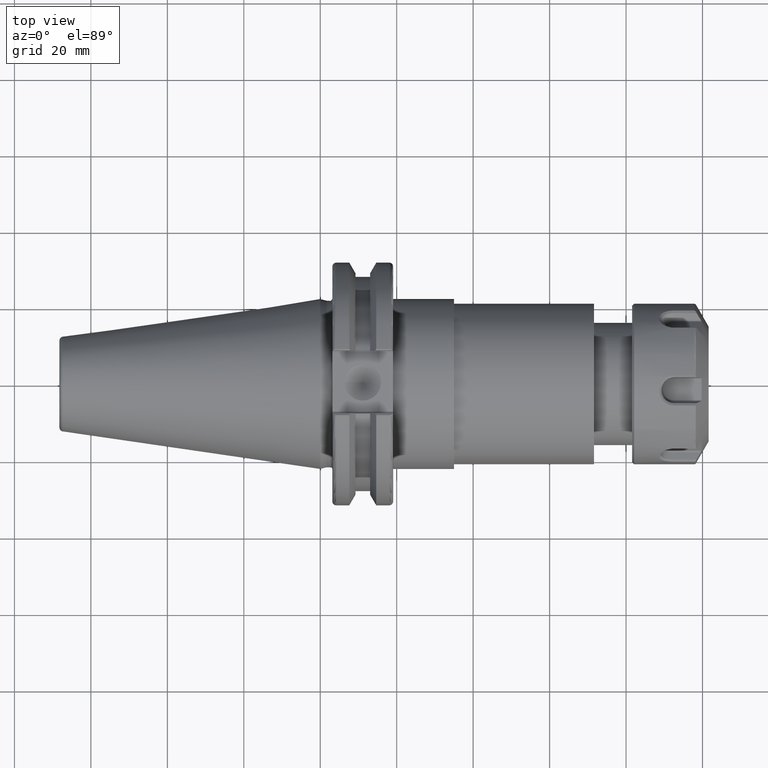
[diagram: clean part render]
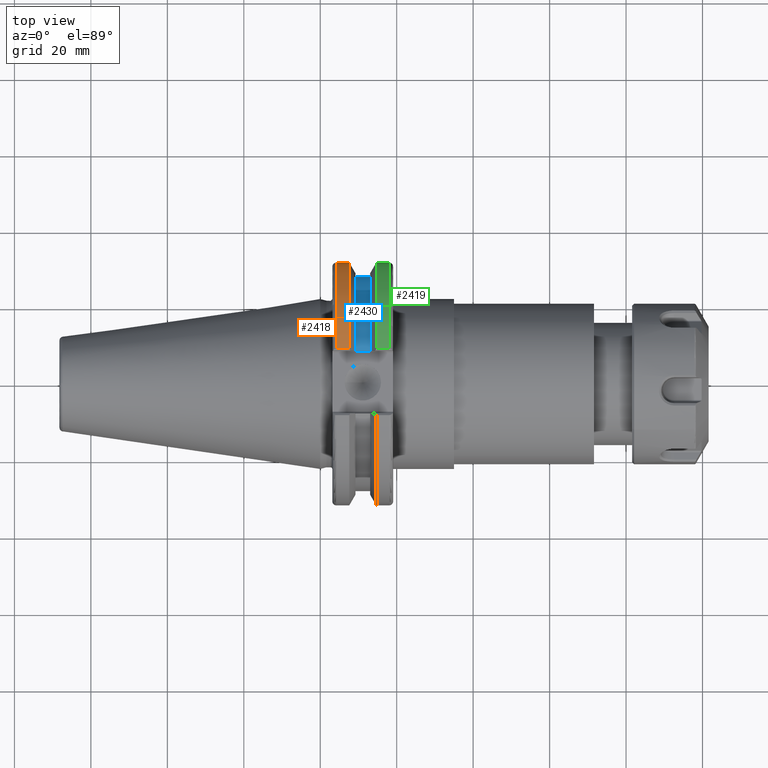
[diagram: same view with three faces highlighted in distinct colors, each labeled with its STEP entity id]
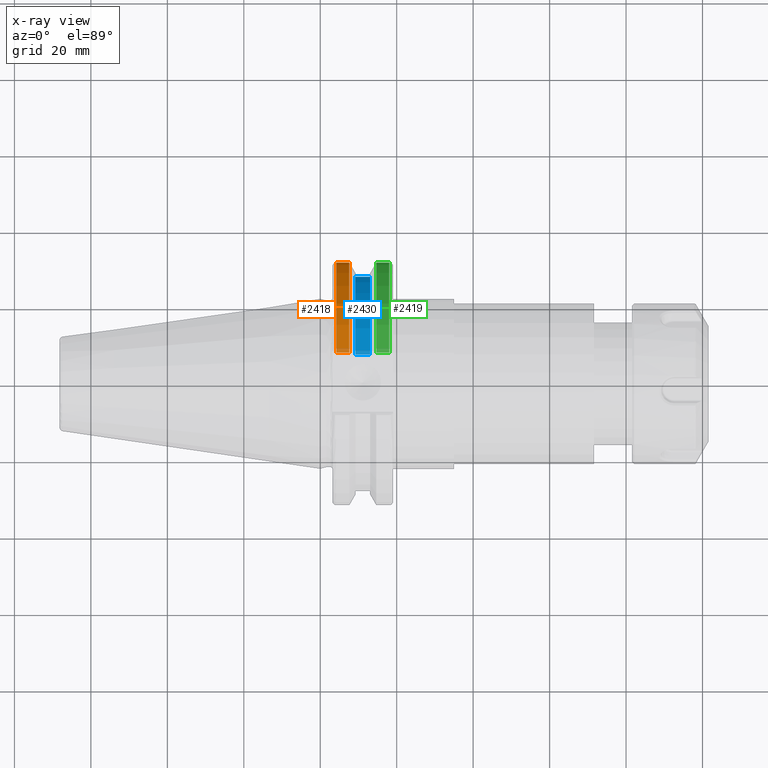
[diagram: x-ray of the same camera — body ghosted, the three highlighted faces saturated]
A machine part, top view with three faces highlighted in distinct colors.
The next image is the same camera in x-ray (body ghosted, the three faces saturated) — at least one of them is partly hidden behind the body in this view.
Their STEP definitions:

[orange] entity #2418 — the highlighted cylindrical surface (partial cylindrical patch) has radius 31.75 mm, axis along (1, 0, 0).
#310=CYLINDRICAL_SURFACE('',#2671,31.75);
#373=FACE_OUTER_BOUND('',#523,.T.);
#523=EDGE_LOOP('',(#1860,#1861,#1862,#1863));
#685=LINE('',#3827,#849);
#699=LINE('',#3886,#863);
#849=VECTOR('',#3008,10.);
#863=VECTOR('',#3060,10.);
#990=CIRCLE('',#2651,31.75);
#998=CIRCLE('',#2672,31.75);
#1145=VERTEX_POINT('',#3800);
#1146=VERTEX_POINT('',#3809);
#1147=VERTEX_POINT('',#3826);
#1161=VERTEX_POINT('',#3885);
#1395=EDGE_CURVE('',#1145,#1146,#990,.T.);
#1398=EDGE_CURVE('',#1146,#1147,#685,.T.);
#1423=EDGE_CURVE('',#1161,#1145,#699,.T.);
#1424=EDGE_CURVE('',#1147,#1161,#998,.T.);
#1860=ORIENTED_EDGE('',*,*,#1395,.F.);
#1861=ORIENTED_EDGE('',*,*,#1423,.F.);
#1862=ORIENTED_EDGE('',*,*,#1424,.F.);
#1863=ORIENTED_EDGE('',*,*,#1398,.F.);
#2418=ADVANCED_FACE('',(#373),#310,.T.);
#2651=AXIS2_PLACEMENT_3D('',#3810,#3004,#3005);
#2671=AXIS2_PLACEMENT_3D('',#3884,#3058,#3059);
#2672=AXIS2_PLACEMENT_3D('',#3887,#3061,#3062);
#3004=DIRECTION('center_axis',(-1.,0.,0.));
#3005=DIRECTION('ref_axis',(0.,1.,1.60812264967664E-16));
#3008=DIRECTION('',(1.,0.,0.));
#3058=DIRECTION('center_axis',(1.,0.,0.));
#3059=DIRECTION('ref_axis',(0.,1.,0.));
#3060=DIRECTION('',(-1.,0.,0.));
#3061=DIRECTION('center_axis',(1.,0.,0.));
#3062=DIRECTION('ref_axis',(0.,0.,-1.));
#3800=CARTESIAN_POINT('',(4.175,8.67204822802685,30.5427254764662));
#3809=CARTESIAN_POINT('',(4.175,8.67204822802685,-30.5427254764662));
#3810=CARTESIAN_POINT('Origin',(4.175,0.,0.));
#3826=CARTESIAN_POINT('',(7.60083323092435,8.67204822802685,-30.5427254764662));
#3827=CARTESIAN_POINT('',(5.38791661546218,8.67204822802685,-30.5427254764662));
#3884=CARTESIAN_POINT('Origin',(5.38791661546218,0.,0.));
#3885=CARTESIAN_POINT('',(7.60083323092435,8.67204822802685,30.5427254764662));
#3886=CARTESIAN_POINT('',(5.38791661546218,8.67204822802685,30.5427254764662));
#3887=CARTESIAN_POINT('Origin',(7.60083323092435,0.,0.));

[blue] entity #2430 — the highlighted cylindrical surface (partial cylindrical patch) has radius 28.15 mm, axis along (1, 0, 0).
#313=CYLINDRICAL_SURFACE('',#2692,28.15);
#385=FACE_OUTER_BOUND('',#535,.T.);
#535=EDGE_LOOP('',(#1913,#1914,#1915,#1916));
#660=LINE('',#3652,#824);
#694=LINE('',#3866,#858);
#824=VECTOR('',#2953,10.);
#858=VECTOR('',#3047,10.);
#1005=CIRCLE('',#2689,28.15);
#1007=CIRCLE('',#2693,28.15);
#1110=VERTEX_POINT('',#3649);
#1111=VERTEX_POINT('',#3651);
#1155=VERTEX_POINT('',#3863);
#1156=VERTEX_POINT('',#3865);
#1350=EDGE_CURVE('',#1111,#1110,#660,.T.);
#1415=EDGE_CURVE('',#1156,#1155,#694,.T.);
#1437=EDGE_CURVE('',#1110,#1156,#1005,.T.);
#1439=EDGE_CURVE('',#1111,#1155,#1007,.T.);
#1913=ORIENTED_EDGE('',*,*,#1350,.T.);
#1914=ORIENTED_EDGE('',*,*,#1437,.T.);
#1915=ORIENTED_EDGE('',*,*,#1415,.T.);
#1916=ORIENTED_EDGE('',*,*,#1439,.F.);
#2430=ADVANCED_FACE('',(#385),#313,.T.);
#2689=AXIS2_PLACEMENT_3D('',#3920,#3098,#3099);
#2692=AXIS2_PLACEMENT_3D('',#3923,#3104,#3105);
#2693=AXIS2_PLACEMENT_3D('',#3924,#3106,#3107);
#2953=DIRECTION('',(-1.,0.,0.));
#3047=DIRECTION('',(1.,0.,0.));
#3098=DIRECTION('center_axis',(1.,0.,0.));
#3099=DIRECTION('ref_axis',(0.,0.,-1.));
#3104=DIRECTION('center_axis',(1.,0.,0.));
#3105=DIRECTION('ref_axis',(0.,1.,0.));
#3106=DIRECTION('center_axis',(1.,0.,0.));
#3107=DIRECTION('ref_axis',(0.,0.,-1.));
#3649=CARTESIAN_POINT('',(9.212,8.19,-26.932255754021));
#3651=CARTESIAN_POINT('',(13.042,8.19,-26.932255754021));
#3652=CARTESIAN_POINT('',(11.127,8.19,-26.932255754021));
#3863=CARTESIAN_POINT('',(13.042,8.19,26.932255754021));
#3865=CARTESIAN_POINT('',(9.212,8.19,26.932255754021));
#3866=CARTESIAN_POINT('',(11.127,8.19,26.932255754021));
#3920=CARTESIAN_POINT('Origin',(9.212,0.,0.));
#3923=CARTESIAN_POINT('Origin',(11.127,0.,0.));
#3924=CARTESIAN_POINT('Origin',(13.042,0.,0.));

[green] entity #2419 — the highlighted cylindrical surface (partial cylindrical patch) has radius 31.75 mm, axis along (1, 0, 0).
#311=CYLINDRICAL_SURFACE('',#2673,31.75);
#374=FACE_OUTER_BOUND('',#524,.T.);
#524=EDGE_LOOP('',(#1864,#1865,#1866,#1867));
#655=LINE('',#3631,#819);
#700=LINE('',#3891,#864);
#819=VECTOR('',#2946,10.);
#864=VECTOR('',#3067,10.);
#985=CIRCLE('',#2635,31.75);
#999=CIRCLE('',#2674,31.75);
#1102=VERTEX_POINT('',#3605);
#1103=VERTEX_POINT('',#3614);
#1105=VERTEX_POINT('',#3627);
#1162=VERTEX_POINT('',#3889);
#1339=EDGE_CURVE('',#1102,#1103,#985,.T.);
#1343=EDGE_CURVE('',#1105,#1102,#655,.T.);
#1425=EDGE_CURVE('',#1105,#1162,#999,.T.);
#1426=EDGE_CURVE('',#1103,#1162,#700,.T.);
#1864=ORIENTED_EDGE('',*,*,#1339,.F.);
#1865=ORIENTED_EDGE('',*,*,#1343,.F.);
#1866=ORIENTED_EDGE('',*,*,#1425,.T.);
#1867=ORIENTED_EDGE('',*,*,#1426,.F.);
#2419=ADVANCED_FACE('',(#374),#311,.T.);
#2635=AXIS2_PLACEMENT_3D('',#3615,#2941,#2942);
#2673=AXIS2_PLACEMENT_3D('',#3888,#3063,#3064);
#2674=AXIS2_PLACEMENT_3D('',#3890,#3065,#3066);
#2941=DIRECTION('center_axis',(1.,0.,0.));
#2942=DIRECTION('ref_axis',(0.,1.,-6.12323399573676E-17));
#2946=DIRECTION('',(1.,0.,0.));
#3063=DIRECTION('center_axis',(1.,0.,0.));
#3064=DIRECTION('ref_axis',(0.,1.,0.));
#3065=DIRECTION('center_axis',(1.,0.,0.));
#3066=DIRECTION('ref_axis',(0.,0.,-1.));
#3067=DIRECTION('',(-1.,0.,0.));
#3605=CARTESIAN_POINT('',(18.05,8.67204822802685,-30.5427254764662));
#3614=CARTESIAN_POINT('',(18.05,8.67204822802685,30.5427254764662));
#3615=CARTESIAN_POINT('Origin',(18.05,0.,0.));
#3627=CARTESIAN_POINT('',(14.6531667690756,8.67204822802685,-30.5427254764662));
#3631=CARTESIAN_POINT('',(16.8515833845378,8.67204822802685,-30.5427254764662));
#3888=CARTESIAN_POINT('Origin',(16.8515833845378,0.,0.));
#3889=CARTESIAN_POINT('',(14.6531667690756,8.67204822802685,30.5427254764662));
#3890=CARTESIAN_POINT('Origin',(14.6531667690756,0.,0.));
#3891=CARTESIAN_POINT('',(16.8515833845378,8.67204822802685,30.5427254764662));